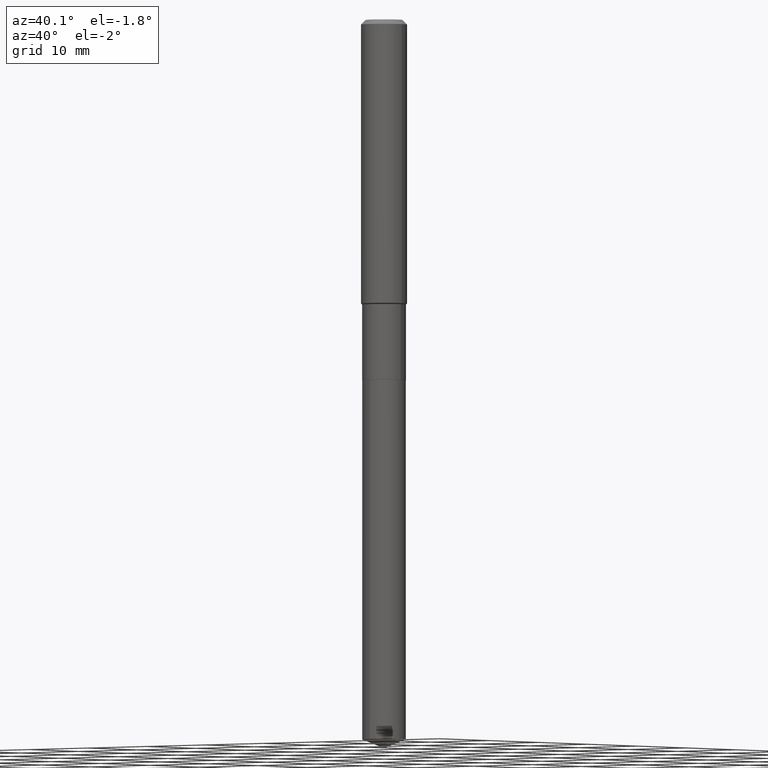
[diagram: clean part render]
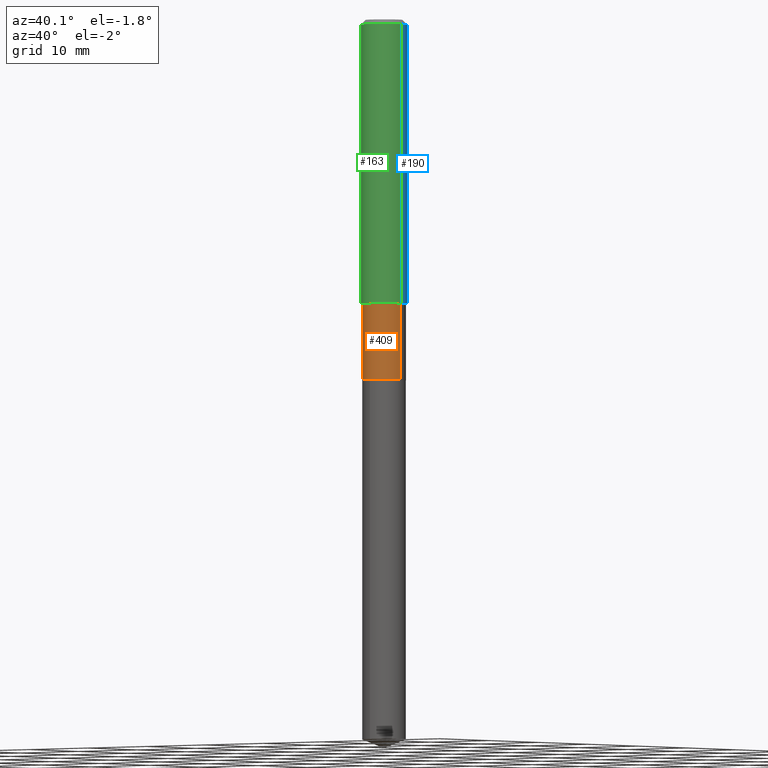
[diagram: same view with three faces highlighted in distinct colors, each labeled with its STEP entity id]
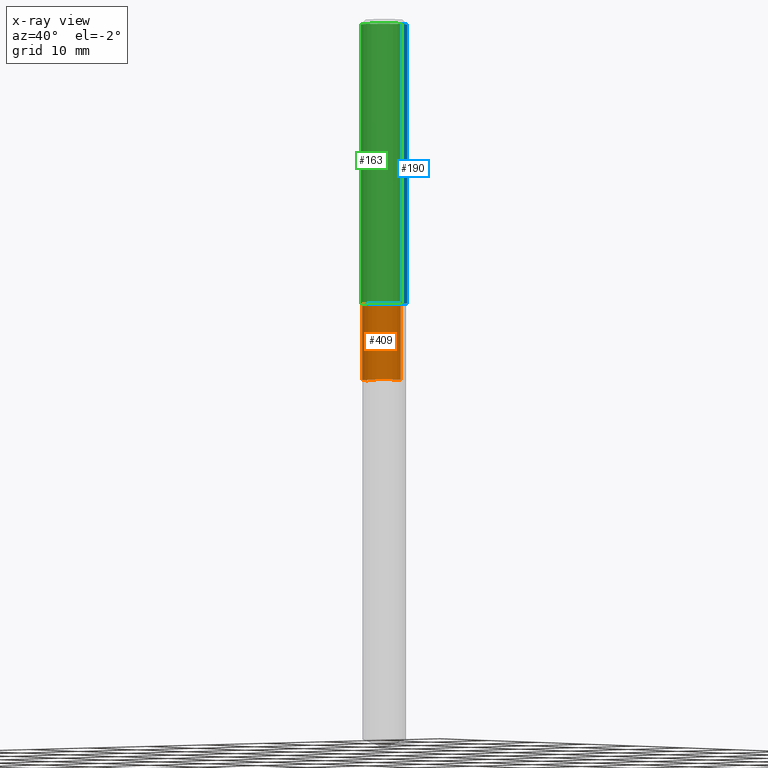
[diagram: x-ray of the same camera — body ghosted, the three highlighted faces saturated]
A machine part, auxiliary view with three faces highlighted in distinct colors.
The next image is the same camera in x-ray (body ghosted, the three faces saturated) — at least one of them is partly hidden behind the body in this view.
Their STEP definitions:

[orange] entity #409 — the highlighted cylindrical surface (edge-blend (fillet) strip) has radius 2.8499 mm, axis along (-0, 0, 1).
#4 = VERTEX_POINT ( 'NONE', #250 ) ;
#15 = DIRECTION ( 'NONE',  ( -2.445468806185136597E-29, 3.491481338843145583E-15, 1.000000000000000000 ) ) ;
#16 = ORIENTED_EDGE ( 'NONE', *, *, #324, .F. ) ;
#30 = VECTOR ( 'NONE', #452, 39.37007874015748143 ) ;
#56 = ORIENTED_EDGE ( 'NONE', *, *, #340, .T. ) ;
#80 = DIRECTION ( 'NONE',  ( -2.445468806185136877E-29, 3.491481338843145188E-15, 1.000000000000000000 ) ) ;
#115 = ORIENTED_EDGE ( 'NONE', *, *, #195, .F. ) ;
#140 = AXIS2_PLACEMENT_3D ( 'NONE', #282, #15, #466 ) ;
#146 = EDGE_CURVE ( 'NONE', #187, #4, #411, .T. ) ;
#147 = DIRECTION ( 'NONE',  ( -2.445468806185136597E-29, 3.491481338843145583E-15, 1.000000000000000000 ) ) ;
#149 = CARTESIAN_POINT ( 'NONE',  ( 0.1121999999999999664, -7.834884124363989048E-16, 5.471070342443038844E-30 ) ) ;
#157 = VERTEX_POINT ( 'NONE', #326 ) ;
#187 = VERTEX_POINT ( 'NONE', #289 ) ;
#189 = LINE ( 'NONE', #338, #30 ) ;
#195 = EDGE_CURVE ( 'NONE', #187, #206, #189, .T. ) ;
#198 = EDGE_LOOP ( 'NONE', ( #115, #248, #56, #16 ) ) ;
#206 = VERTEX_POINT ( 'NONE', #459 ) ;
#216 = CIRCLE ( 'NONE', #260, 0.1121999999999999525 ) ;
#248 = ORIENTED_EDGE ( 'NONE', *, *, #146, .T. ) ;
#250 = CARTESIAN_POINT ( 'NONE',  ( 0.1122000000000000081, -7.242379741162336062E-15, -1.849900000000000322 ) ) ;
#260 = AXIS2_PLACEMENT_3D ( 'NONE', #485, #415, #270 ) ;
#269 = LINE ( 'NONE', #149, #385 ) ;
#270 = DIRECTION ( 'NONE',  ( 1.000000000000000000, -6.982962677686270655E-15, 0.000000000000000000 ) ) ;
#282 = CARTESIAN_POINT ( 'NONE',  ( 0.000000000000000000, 0.000000000000000000, 0.000000000000000000 ) ) ;
#289 = CARTESIAN_POINT ( 'NONE',  ( -0.1121999999999999803, -4.985187869802244054E-15, -1.849900000000000322 ) ) ;
#324 = EDGE_CURVE ( 'NONE', #206, #157, #216, .T. ) ;
#326 = CARTESIAN_POINT ( 'NONE',  ( 0.1121999999999999525, -5.889430722360616365E-15, -1.462400000000000144 ) ) ;
#330 = AXIS2_PLACEMENT_3D ( 'NONE', #483, #147, #414 ) ;
#338 = CARTESIAN_POINT ( 'NONE',  ( -0.1121999999999999664, 7.972289495228321700E-16, -5.519045171266003019E-30 ) ) ;
#340 = EDGE_CURVE ( 'NONE', #4, #157, #269, .T. ) ;
#360 = CYLINDRICAL_SURFACE ( 'NONE', #140, 0.1121999999999999664 ) ;
#385 = VECTOR ( 'NONE', #80, 39.37007874015748143 ) ;
#389 = FACE_OUTER_BOUND ( 'NONE', #198, .T. ) ;
#409 = ADVANCED_FACE ( 'NONE', ( #389 ), #360, .T. ) ;
#411 = CIRCLE ( 'NONE', #330, 0.1122000000000000081 ) ;
#414 = DIRECTION ( 'NONE',  ( 1.000000000000000000, -6.982962677686266711E-15, 0.000000000000000000 ) ) ;
#415 = DIRECTION ( 'NONE',  ( -2.445468806185136597E-29, 3.491481338843145583E-15, 1.000000000000000000 ) ) ;
#452 = DIRECTION ( 'NONE',  ( -2.445468806185136877E-29, 3.491481338843145188E-15, 1.000000000000000000 ) ) ;
#459 = CARTESIAN_POINT ( 'NONE',  ( -0.1121999999999999525, -4.985187869802244054E-15, -1.462400000000000144 ) ) ;
#466 = DIRECTION ( 'NONE',  ( 1.000000000000000000, -6.982962677686266711E-15, 4.876176775795936353E-29 ) ) ;
#483 = CARTESIAN_POINT ( 'NONE',  ( 4.523872744561885153E-29, -6.458891328725936072E-15, -1.849900000000000322 ) ) ;
#485 = CARTESIAN_POINT ( 'NONE',  ( 3.576253582165144497E-29, -5.105942309924217164E-15, -1.462400000000000144 ) ) ;

[blue] entity #190 — the highlighted cylindrical surface (edge-blend (fillet) strip) has radius 2.9997 mm, axis along (-0, 0, 1).
#5 = AXIS2_PLACEMENT_3D ( 'NONE', #226, #234, #44 ) ;
#40 = CARTESIAN_POINT ( 'NONE',  ( 0.1180999999999999966, -9.071566814582237199E-16, -0.02362000000000014088 ) ) ;
#41 = ORIENTED_EDGE ( 'NONE', *, *, #213, .F. ) ;
#44 = DIRECTION ( 'NONE',  ( 1.000000000000000000, -6.982962677686266711E-15, 0.000000000000000000 ) ) ;
#72 = ORIENTED_EDGE ( 'NONE', *, *, #284, .F. ) ;
#73 = EDGE_CURVE ( 'NONE', #323, #401, #443, .T. ) ;
#82 = CARTESIAN_POINT ( 'NONE',  ( 0.1181000000000000799, -8.246878922347486570E-16, 5.758764772215004644E-30 ) ) ;
#103 = DIRECTION ( 'NONE',  ( -2.445468806185136877E-29, 3.491481338843145188E-15, 1.000000000000000000 ) ) ;
#116 = DIRECTION ( 'NONE',  ( 1.000000000000000000, -6.982962677686266711E-15, 4.876176775795936353E-29 ) ) ;
#145 = DIRECTION ( 'NONE',  ( -2.445468806185136597E-29, 3.491481338843145583E-15, 1.000000000000000000 ) ) ;
#148 = VECTOR ( 'NONE', #103, 39.37007874015748143 ) ;
#158 = DIRECTION ( 'NONE',  ( 1.000000000000000000, -6.982962677686270655E-15, 0.000000000000000000 ) ) ;
#167 = CARTESIAN_POINT ( 'NONE',  ( 3.561825316208651906E-29, -5.085342570025042633E-15, -1.456500000000000128 ) ) ;
#178 = CIRCLE ( 'NONE', #5, 0.1180999999999999966 ) ;
#185 = CIRCLE ( 'NONE', #354, 0.1181000000000001632 ) ;
#190 = ADVANCED_FACE ( 'NONE', ( #215 ), #332, .T. ) ;
#192 = EDGE_LOOP ( 'NONE', ( #306, #475, #41, #72 ) ) ;
#196 = CARTESIAN_POINT ( 'NONE',  ( -0.1181000000000001632, -4.246191599092362858E-15, -1.456500000000000128 ) ) ;
#213 = EDGE_CURVE ( 'NONE', #283, #401, #178, .T. ) ;
#215 = FACE_OUTER_BOUND ( 'NONE', #192, .T. ) ;
#226 = CARTESIAN_POINT ( 'NONE',  ( 5.776197320209327532E-31, -8.246878922347559293E-17, -0.02362000000000014088 ) ) ;
#234 = DIRECTION ( 'NONE',  ( -2.445468806185136597E-29, 3.491481338843145583E-15, 1.000000000000000000 ) ) ;
#247 = DIRECTION ( 'NONE',  ( -2.445468806185136597E-29, 3.491481338843145583E-15, 1.000000000000000000 ) ) ;
#283 = VERTEX_POINT ( 'NONE', #40 ) ;
#284 = EDGE_CURVE ( 'NONE', #426, #283, #423, .T. ) ;
#306 = ORIENTED_EDGE ( 'NONE', *, *, #484, .T. ) ;
#323 = VERTEX_POINT ( 'NONE', #196 ) ;
#332 = CYLINDRICAL_SURFACE ( 'NONE', #431, 0.1181000000000000799 ) ;
#348 = CARTESIAN_POINT ( 'NONE',  ( 0.1181000000000001632, -5.910030462259791685E-15, -1.456500000000000128 ) ) ;
#354 = AXIS2_PLACEMENT_3D ( 'NONE', #167, #247, #158 ) ;
#370 = CARTESIAN_POINT ( 'NONE',  ( -0.1181000000000000799, 8.391509709326788873E-16, -5.809262341591047988E-30 ) ) ;
#399 = CARTESIAN_POINT ( 'NONE',  ( -0.1180999999999999966, -1.744754708691579468E-15, -0.02362000000000014088 ) ) ;
#401 = VERTEX_POINT ( 'NONE', #399 ) ;
#417 = DIRECTION ( 'NONE',  ( -2.445468806185136877E-29, 3.491481338843145188E-15, 1.000000000000000000 ) ) ;
#418 = VECTOR ( 'NONE', #417, 39.37007874015748143 ) ;
#423 = LINE ( 'NONE', #82, #418 ) ;
#426 = VERTEX_POINT ( 'NONE', #348 ) ;
#431 = AXIS2_PLACEMENT_3D ( 'NONE', #482, #145, #116 ) ;
#443 = LINE ( 'NONE', #370, #148 ) ;
#475 = ORIENTED_EDGE ( 'NONE', *, *, #73, .T. ) ;
#482 = CARTESIAN_POINT ( 'NONE',  ( 0.000000000000000000, 0.000000000000000000, 0.000000000000000000 ) ) ;
#484 = EDGE_CURVE ( 'NONE', #426, #323, #185, .T. ) ;

[green] entity #163 — the highlighted cylindrical surface (edge-blend (fillet) strip) has radius 2.9997 mm, axis along (-0, 0, 1).
#40 = CARTESIAN_POINT ( 'NONE',  ( 0.1180999999999999966, -9.071566814582237199E-16, -0.02362000000000014088 ) ) ;
#61 = DIRECTION ( 'NONE',  ( -2.445468806185136597E-29, 3.491481338843145583E-15, 1.000000000000000000 ) ) ;
#69 = DIRECTION ( 'NONE',  ( -2.445468806185136597E-29, 3.491481338843145583E-15, 1.000000000000000000 ) ) ;
#73 = EDGE_CURVE ( 'NONE', #323, #401, #443, .T. ) ;
#82 = CARTESIAN_POINT ( 'NONE',  ( 0.1181000000000000799, -8.246878922347486570E-16, 5.758764772215004644E-30 ) ) ;
#84 = CIRCLE ( 'NONE', #130, 0.1180999999999999966 ) ;
#89 = CARTESIAN_POINT ( 'NONE',  ( 5.776197320209327532E-31, -8.246878922347559293E-17, -0.02362000000000014088 ) ) ;
#99 = DIRECTION ( 'NONE',  ( 1.000000000000000000, -6.982962677686270655E-15, 0.000000000000000000 ) ) ;
#103 = DIRECTION ( 'NONE',  ( -2.445468806185136877E-29, 3.491481338843145188E-15, 1.000000000000000000 ) ) ;
#104 = EDGE_CURVE ( 'NONE', #323, #426, #199, .T. ) ;
#130 = AXIS2_PLACEMENT_3D ( 'NONE', #89, #170, #391 ) ;
#148 = VECTOR ( 'NONE', #103, 39.37007874015748143 ) ;
#163 = ADVANCED_FACE ( 'NONE', ( #405 ), #288, .T. ) ;
#170 = DIRECTION ( 'NONE',  ( -2.445468806185136597E-29, 3.491481338843145583E-15, 1.000000000000000000 ) ) ;
#193 = AXIS2_PLACEMENT_3D ( 'NONE', #329, #69, #99 ) ;
#196 = CARTESIAN_POINT ( 'NONE',  ( -0.1181000000000001632, -4.246191599092362858E-15, -1.456500000000000128 ) ) ;
#199 = CIRCLE ( 'NONE', #193, 0.1181000000000001632 ) ;
#256 = DIRECTION ( 'NONE',  ( 1.000000000000000000, -6.982962677686266711E-15, 4.876176775795936353E-29 ) ) ;
#283 = VERTEX_POINT ( 'NONE', #40 ) ;
#284 = EDGE_CURVE ( 'NONE', #426, #283, #423, .T. ) ;
#288 = CYLINDRICAL_SURFACE ( 'NONE', #344, 0.1181000000000000799 ) ;
#301 = ORIENTED_EDGE ( 'NONE', *, *, #400, .F. ) ;
#308 = ORIENTED_EDGE ( 'NONE', *, *, #104, .T. ) ;
#323 = VERTEX_POINT ( 'NONE', #196 ) ;
#329 = CARTESIAN_POINT ( 'NONE',  ( 3.561825316208651906E-29, -5.085342570025042633E-15, -1.456500000000000128 ) ) ;
#344 = AXIS2_PLACEMENT_3D ( 'NONE', #403, #61, #256 ) ;
#348 = CARTESIAN_POINT ( 'NONE',  ( 0.1181000000000001632, -5.910030462259791685E-15, -1.456500000000000128 ) ) ;
#370 = CARTESIAN_POINT ( 'NONE',  ( -0.1181000000000000799, 8.391509709326788873E-16, -5.809262341591047988E-30 ) ) ;
#384 = EDGE_LOOP ( 'NONE', ( #490, #308, #467, #301 ) ) ;
#391 = DIRECTION ( 'NONE',  ( 1.000000000000000000, -6.982962677686266711E-15, 0.000000000000000000 ) ) ;
#399 = CARTESIAN_POINT ( 'NONE',  ( -0.1180999999999999966, -1.744754708691579468E-15, -0.02362000000000014088 ) ) ;
#400 = EDGE_CURVE ( 'NONE', #401, #283, #84, .T. ) ;
#401 = VERTEX_POINT ( 'NONE', #399 ) ;
#403 = CARTESIAN_POINT ( 'NONE',  ( 0.000000000000000000, 0.000000000000000000, 0.000000000000000000 ) ) ;
#405 = FACE_OUTER_BOUND ( 'NONE', #384, .T. ) ;
#417 = DIRECTION ( 'NONE',  ( -2.445468806185136877E-29, 3.491481338843145188E-15, 1.000000000000000000 ) ) ;
#418 = VECTOR ( 'NONE', #417, 39.37007874015748143 ) ;
#423 = LINE ( 'NONE', #82, #418 ) ;
#426 = VERTEX_POINT ( 'NONE', #348 ) ;
#443 = LINE ( 'NONE', #370, #148 ) ;
#467 = ORIENTED_EDGE ( 'NONE', *, *, #284, .T. ) ;
#490 = ORIENTED_EDGE ( 'NONE', *, *, #73, .F. ) ;